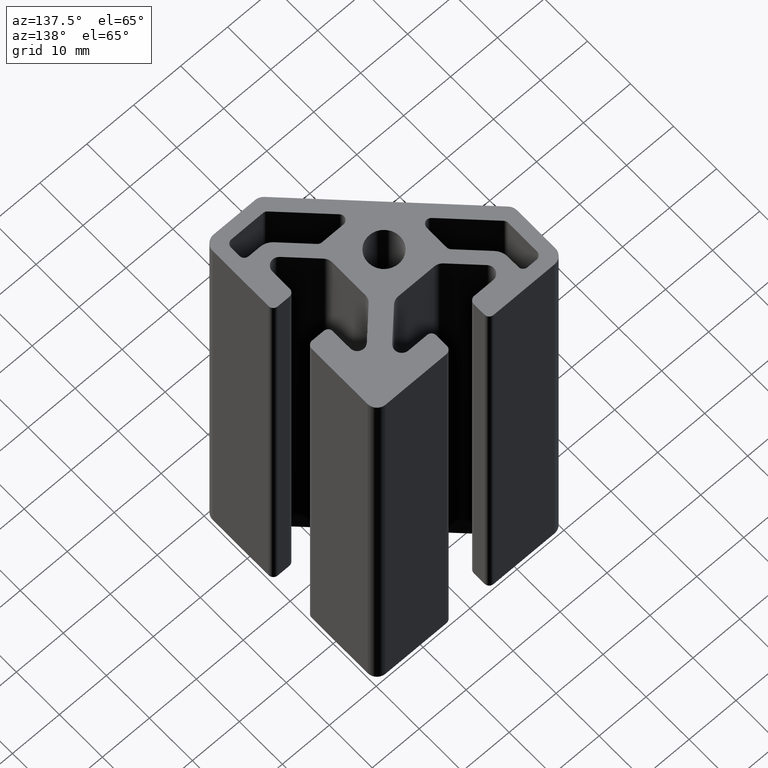
[diagram: clean part render]
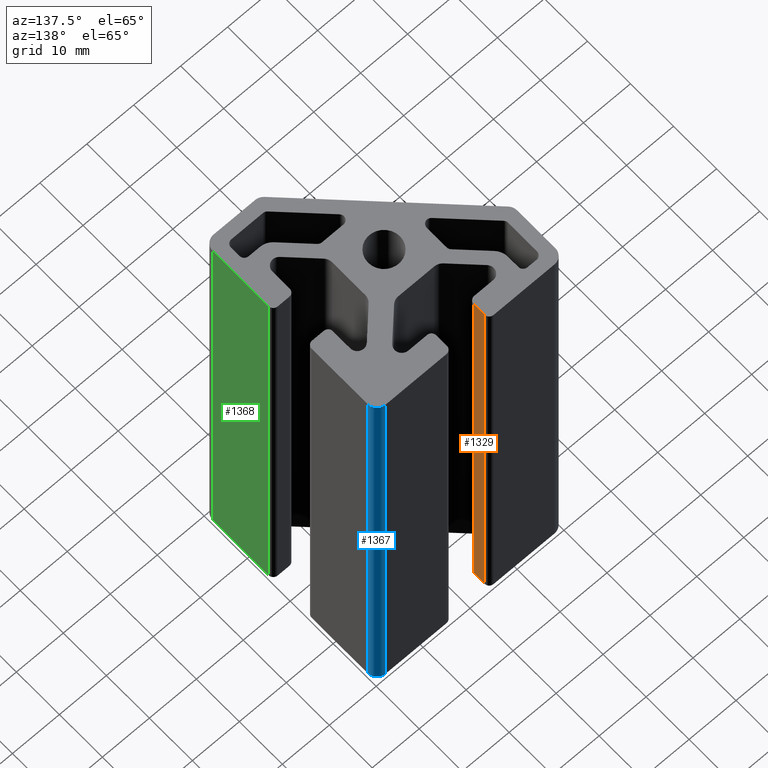
[diagram: same view with three faces highlighted in distinct colors, each labeled with its STEP entity id]
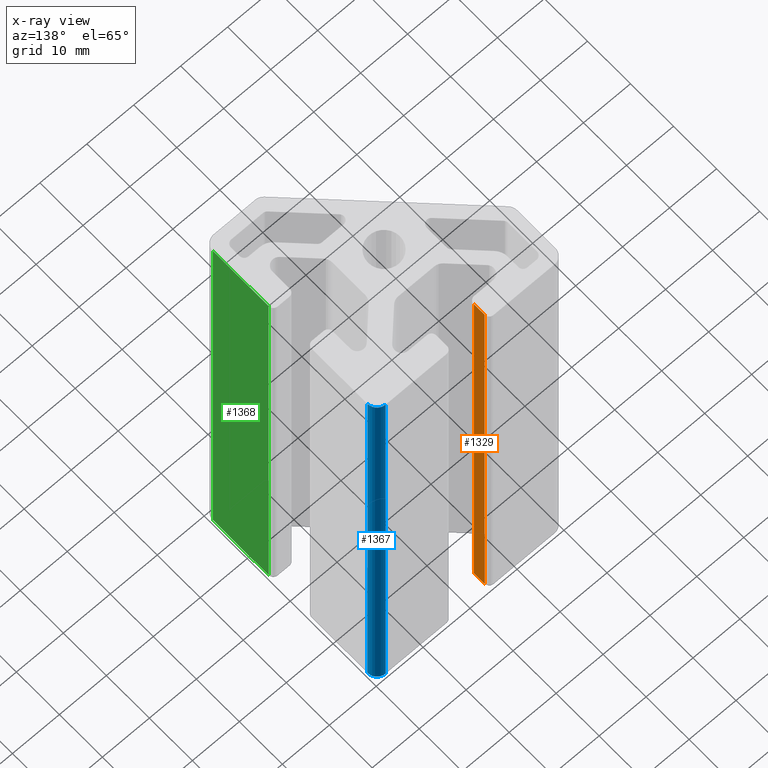
[diagram: x-ray of the same camera — body ghosted, the three highlighted faces saturated]
A machine part, auxiliary view with three faces highlighted in distinct colors.
The next image is the same camera in x-ray (body ghosted, the three faces saturated) — at least one of them is partly hidden behind the body in this view.
Their STEP definitions:

[orange] entity #1329 — the highlighted planar face has unit normal (-1, 0, 0).
#151=FACE_OUTER_BOUND('',#221,.T.);
#221=EDGE_LOOP('',(#973,#974,#975,#976));
#319=LINE('',#2082,#451);
#321=LINE('',#2088,#453);
#322=LINE('',#2090,#454);
#323=LINE('',#2091,#455);
#451=VECTOR('',#1674,100.);
#453=VECTOR('',#1680,2.5);
#454=VECTOR('',#1681,100.);
#455=VECTOR('',#1682,2.5);
#587=VERTEX_POINT('',#2078);
#589=VERTEX_POINT('',#2081);
#591=VERTEX_POINT('',#2087);
#592=VERTEX_POINT('',#2089);
#746=EDGE_CURVE('',#589,#587,#319,.T.);
#749=EDGE_CURVE('',#591,#587,#321,.T.);
#750=EDGE_CURVE('',#592,#591,#322,.T.);
#751=EDGE_CURVE('',#589,#592,#323,.T.);
#973=ORIENTED_EDGE('',*,*,#749,.F.);
#974=ORIENTED_EDGE('',*,*,#750,.F.);
#975=ORIENTED_EDGE('',*,*,#751,.F.);
#976=ORIENTED_EDGE('',*,*,#746,.T.);
#1279=PLANE('',#1430);
#1329=ADVANCED_FACE('',(#151),#1279,.F.);
#1430=AXIS2_PLACEMENT_3D('',#2086,#1678,#1679);
#1674=DIRECTION('',(0.,0.,1.));
#1678=DIRECTION('center_axis',(-1.,0.,0.));
#1679=DIRECTION('ref_axis',(0.,-1.,0.));
#1680=DIRECTION('',(0.,1.,0.));
#1681=DIRECTION('',(0.,0.,1.));
#1682=DIRECTION('',(0.,-1.,0.));
#2078=CARTESIAN_POINT('',(-4.,19.,100.));
#2081=CARTESIAN_POINT('',(-4.,19.,0.));
#2082=CARTESIAN_POINT('',(-4.,19.,0.));
#2086=CARTESIAN_POINT('Origin',(-4.,19.,0.));
#2087=CARTESIAN_POINT('',(-4.,16.5,100.));
#2088=CARTESIAN_POINT('',(-4.,9.5,100.));
#2089=CARTESIAN_POINT('',(-4.,16.5,0.));
#2090=CARTESIAN_POINT('',(-4.,16.5,0.));
#2091=CARTESIAN_POINT('',(-4.,9.5,0.));

[blue] entity #1367 — the highlighted cylindrical surface (edge-blend (fillet) strip) has radius 2 mm, axis along (0, 0, 1).
#86=CIRCLE('',#1499,2.);
#88=CIRCLE('',#1505,2.);
#122=CYLINDRICAL_SURFACE('',#1504,2.);
#189=FACE_OUTER_BOUND('',#262,.T.);
#262=EDGE_LOOP('',(#1188,#1189,#1190,#1191));
#387=LINE('',#2285,#519);
#397=LINE('',#2311,#529);
#519=VECTOR('',#1874,100.);
#529=VECTOR('',#1902,100.);
#657=VERTEX_POINT('',#2282);
#658=VERTEX_POINT('',#2284);
#663=VERTEX_POINT('',#2300);
#665=VERTEX_POINT('',#2310);
#847=EDGE_CURVE('',#657,#658,#387,.T.);
#856=EDGE_CURVE('',#663,#658,#86,.T.);
#861=EDGE_CURVE('',#665,#663,#397,.T.);
#863=EDGE_CURVE('',#665,#657,#88,.T.);
#1188=ORIENTED_EDGE('',*,*,#856,.T.);
#1189=ORIENTED_EDGE('',*,*,#847,.F.);
#1190=ORIENTED_EDGE('',*,*,#863,.F.);
#1191=ORIENTED_EDGE('',*,*,#861,.T.);
#1367=ADVANCED_FACE('',(#189),#122,.T.);
#1499=AXIS2_PLACEMENT_3D('',#2301,#1889,#1890);
#1504=AXIS2_PLACEMENT_3D('',#2313,#1904,#1905);
#1505=AXIS2_PLACEMENT_3D('',#2314,#1906,#1907);
#1874=DIRECTION('',(0.,0.,1.));
#1889=DIRECTION('center_axis',(0.,0.,-1.));
#1890=DIRECTION('ref_axis',(-1.,0.,0.));
#1902=DIRECTION('',(0.,0.,1.));
#1904=DIRECTION('center_axis',(0.,0.,1.));
#1905=DIRECTION('ref_axis',(-1.,0.,0.));
#1906=DIRECTION('center_axis',(0.,0.,-1.));
#1907=DIRECTION('ref_axis',(-1.,0.,0.));
#2282=CARTESIAN_POINT('',(20.,18.,0.));
#2284=CARTESIAN_POINT('',(20.,18.,100.));
#2285=CARTESIAN_POINT('',(20.,18.,0.));
#2300=CARTESIAN_POINT('',(18.,20.,100.));
#2301=CARTESIAN_POINT('Origin',(18.,18.,100.));
#2310=CARTESIAN_POINT('',(18.,20.,0.));
#2311=CARTESIAN_POINT('',(18.,20.,0.));
#2313=CARTESIAN_POINT('Origin',(18.,18.,0.));
#2314=CARTESIAN_POINT('Origin',(18.,18.,0.));

[green] entity #1368 — the highlighted planar face has unit normal (1, 0, 0).
#190=FACE_OUTER_BOUND('',#263,.T.);
#263=EDGE_LOOP('',(#1192,#1193,#1194,#1195));
#347=LINE('',#2166,#479);
#393=LINE('',#2299,#525);
#399=LINE('',#2317,#531);
#400=LINE('',#2318,#532);
#479=VECTOR('',#1758,100.);
#525=VECTOR('',#1888,13.);
#531=VECTOR('',#1910,100.);
#532=VECTOR('',#1911,13.);
#615=VERTEX_POINT('',#2162);
#617=VERTEX_POINT('',#2165);
#662=VERTEX_POINT('',#2297);
#666=VERTEX_POINT('',#2316);
#788=EDGE_CURVE('',#615,#617,#347,.T.);
#855=EDGE_CURVE('',#615,#662,#393,.T.);
#864=EDGE_CURVE('',#666,#662,#399,.T.);
#865=EDGE_CURVE('',#617,#666,#400,.T.);
#1192=ORIENTED_EDGE('',*,*,#788,.F.);
#1193=ORIENTED_EDGE('',*,*,#855,.T.);
#1194=ORIENTED_EDGE('',*,*,#864,.F.);
#1195=ORIENTED_EDGE('',*,*,#865,.F.);
#1300=PLANE('',#1506);
#1368=ADVANCED_FACE('',(#190),#1300,.T.);
#1506=AXIS2_PLACEMENT_3D('',#2315,#1908,#1909);
#1758=DIRECTION('',(0.,0.,-1.));
#1888=DIRECTION('',(0.,-1.,0.));
#1908=DIRECTION('center_axis',(1.,0.,0.));
#1909=DIRECTION('ref_axis',(0.,1.,0.));
#1910=DIRECTION('',(0.,0.,1.));
#1911=DIRECTION('',(0.,-1.,0.));
#2162=CARTESIAN_POINT('',(20.,-5.,100.));
#2165=CARTESIAN_POINT('',(20.,-5.,0.));
#2166=CARTESIAN_POINT('',(20.,-5.,0.));
#2297=CARTESIAN_POINT('',(20.,-18.,100.));
#2299=CARTESIAN_POINT('',(20.,-9.,100.));
#2315=CARTESIAN_POINT('Origin',(20.,-18.,0.));
#2316=CARTESIAN_POINT('',(20.,-18.,0.));
#2317=CARTESIAN_POINT('',(20.,-18.,0.));
#2318=CARTESIAN_POINT('',(20.,-9.,0.));